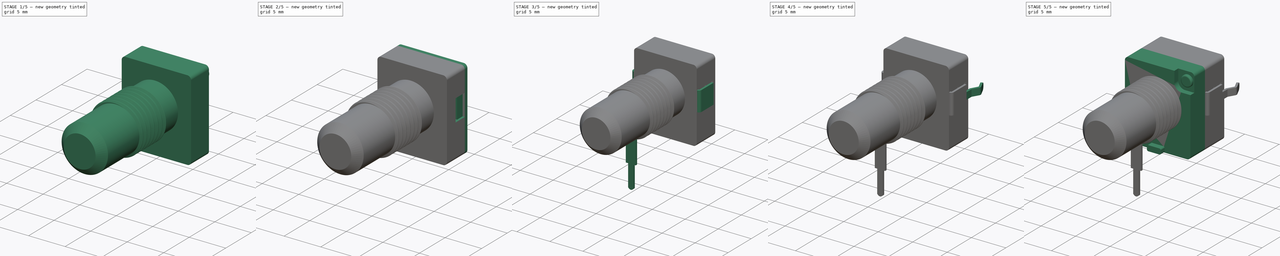
[diagram: build sequence overview — one tinted view per stage of 5, left to right]
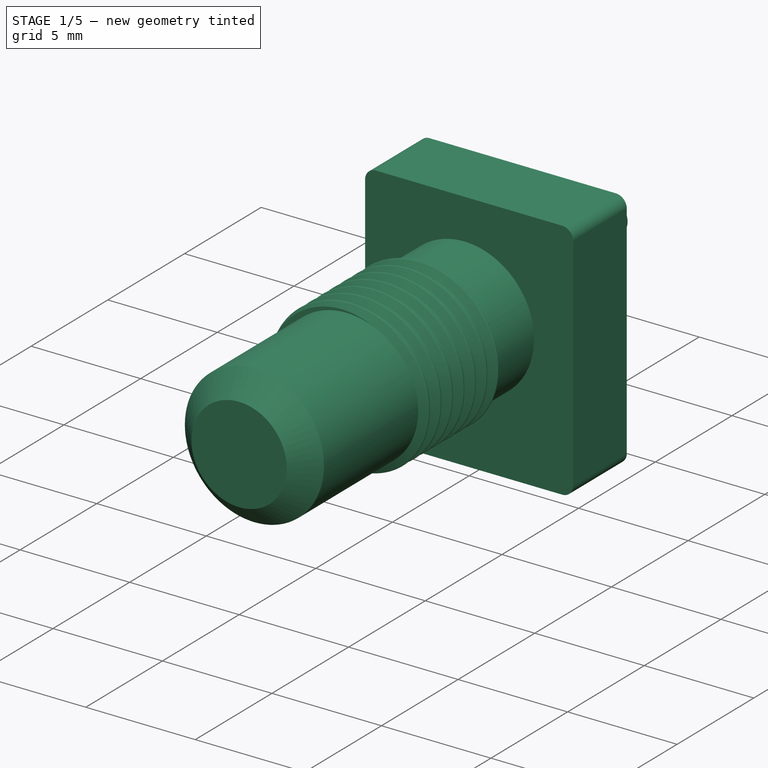
[diagram: stage 1 of 5 — iso view after this stage's code; geometry added in this stage tinted green]
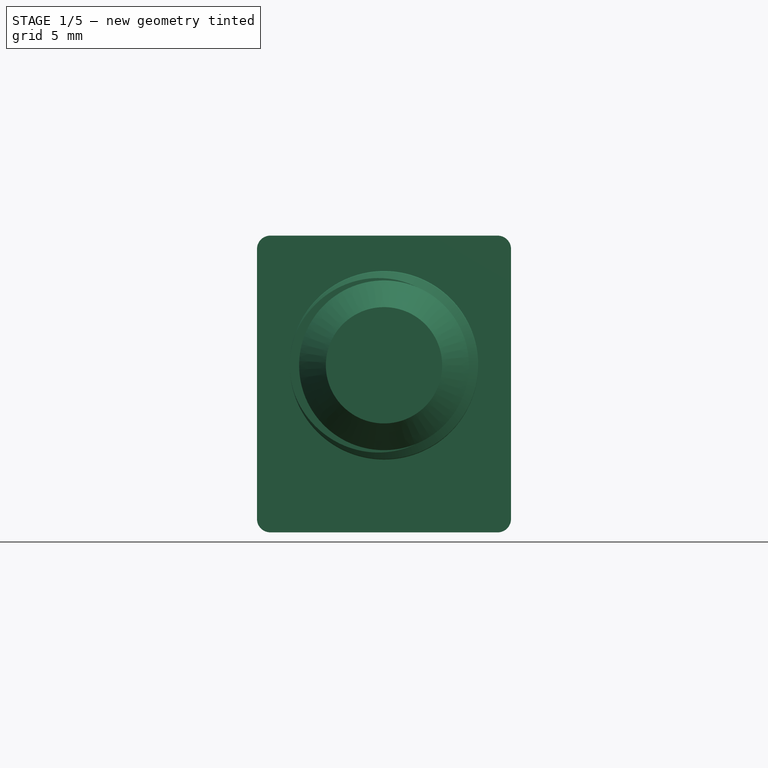
[diagram: stage 1 of 5 — front view after this stage's code; geometry added in this stage tinted green]
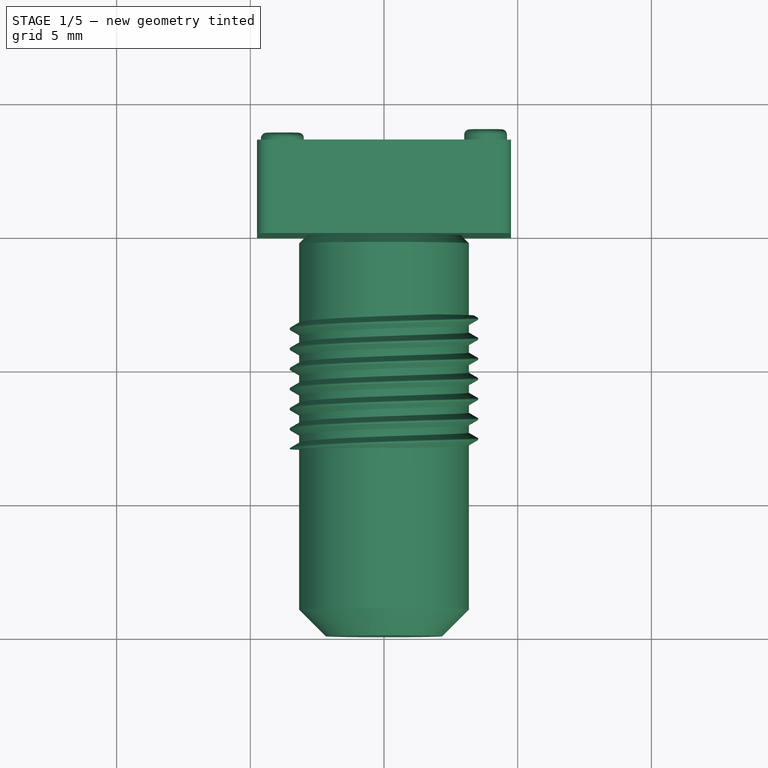
[diagram: stage 1 of 5 — top view after this stage's code; geometry added in this stage tinted green]
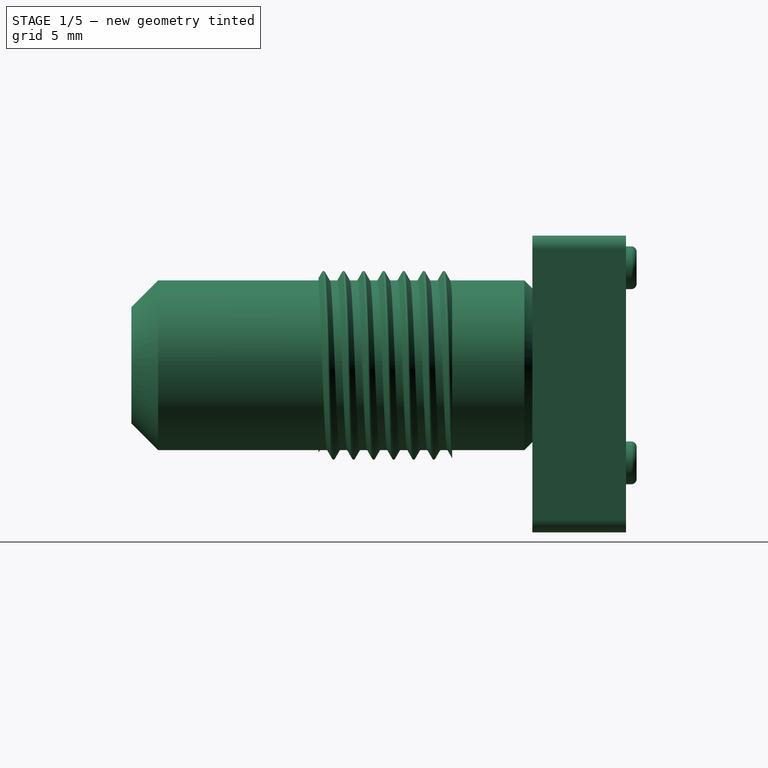
[diagram: stage 1 of 5 — right view after this stage's code; geometry added in this stage tinted green]
FCSTD DOCUMENT  (FreeCAD 0.21R33771 (Git))
Label: ALPHA-RD901F-40
License: All rights reserved
LicenseURL: http://fr.wikipedia.org/wiki/<copyright redacted>
objects: Sketcher::SketchObject×18, PartDesign::Pad×12, PartDesign::FeaturePython×9, PartDesign::Fillet×8, PartDesign::Pocket×6, PartDesign::Body×5, Part::Feature×2, PartDesign::Chamfer×2, Part::FeaturePython×1
note: 91 computed .brp shape members not serialized (recipe doc carries the construction recipe); baked Part::Feature solids carry a one-line shape summary decoded from their .brp

FEATURE [PartDesign::Body] Body  label="TopBody"
  Group = -> [Sketch,Pad,Sketch001,Pocket,Sketch002,Pad001,Sketch003,Pad002,Fillet,Fillet001,Sketch005,Pad003]
  Origin = -> Origin
  Tip = -> Pad003
FEATURE [Sketcher::SketchObject] Sketch006
  FullyConstrained = false
  MapMode = 5
  Placement = pos=(0,0,0) rot=(1,0,0;1.5708rad)
  Support = -> [XZ_Plane001]
  sketch-geometry (4):
    g0: LineSegment StartX=4.75 StartY=4.85 StartZ=0 EndX=-4.75 EndY=4.85 EndZ=0
    g1: LineSegment StartX=-4.75 StartY=4.85 StartZ=0 EndX=-4.75 EndY=-6.25 EndZ=0
    g2: LineSegment StartX=-4.75 StartY=-6.25 StartZ=0 EndX=4.75 EndY=-6.25 EndZ=0
    g3: LineSegment StartX=4.75 StartY=-6.25 StartZ=0 EndX=4.75 EndY=4.85 EndZ=0
  constraints (12):
    c: Coincident(g0,g1)
    c: Coincident(g1,g2)
    c: Coincident(g2,g3)
    c: Coincident(g3,g0)
    c: Horizontal(g0)
    c: Horizontal(g2)
    c: Vertical(g1)
    c: Vertical(g3)
    c: DistanceY(g0) = 4.85
    c: DistanceX(g0,g0) = 9.5
    c: DistanceY(g2,g-1) = 6.25
    c: Symmetric(g0,g0,g-2)
FEATURE [PartDesign::Pad] Pad004  label="BasePad001"
  AllowMultiFace = false
  Direction = (1,1,1)
  Length = 3.5
  Length2 = 100
  Placement = pos=(0,0,0) rot=(1,0,0;1.5708rad)
  Profile = -> Sketch006
  Reversed = true
  Type = 0
FEATURE [Sketcher::SketchObject] Sketch009
  FullyConstrained = false
  MapMode = 5
  Placement = pos=(0,3.5,3.621e-13) rot=(-1,0,0;1.5708rad)
  Support = -> [Pad004]
  sketch-geometry (2):
    g0: Circle CenterX=-3.8 CenterY=3.65 CenterZ=0 NormalX=0 NormalY=0 NormalZ=1 AngleXU=0 Radius=0.8
    g1: Circle CenterX=3.8 CenterY=-3.65 CenterZ=0 NormalX=0 NormalY=0 NormalZ=1 AngleXU=0 Radius=0.8
  constraints (6):
    c: Radius(g0) = 0.8
    c: DistanceX(g-1,g0) = -3.8
    c: DistanceY(g-1,g0) = 3.65
    c: DistanceX(g1) = 3.8
    c: DistanceY(g1) = -3.65
    c: Radius(g1) = 0.8
FEATURE [PartDesign::Pad] Pad006
  AllowMultiFace = false
  BaseFeature = -> Pad004
  Direction = (1,1,1)
  Length = 0.4
  Length2 = 100
  Placement = pos=(0,0,0) rot=(1,0,0;1.5708rad)
  Profile = -> Sketch009
  Type = 0
FEATURE [PartDesign::Fillet] Fillet003
  Base = -> Pad006 [Edge16,Edge18]
  BaseFeature = -> Pad006
  Placement = pos=(0,0,0) rot=(1,0,0;1.5708rad)
  Radius = 0.2
  SupportTransform = false
  UseAllEdges = false
FEATURE [PartDesign::Fillet] Fillet006
  Base = -> Fillet003 [Edge11,Edge12,Edge14,Edge16]
  BaseFeature = -> Fillet003
  Placement = pos=(0,0,0) rot=(1,0,0;1.5708rad)
  Radius = 0.5
  SupportTransform = false
  UseAllEdges = false
FEATURE [PartDesign::Body] Body001  label="MainPlasticBody"
  Group = -> [Sketch006,Pad004,Sketch009,Pad006,Fillet003,Fillet006,Sketch013,Pocket005,Sketch014,Pad007,Fillet007,Sketch019,Pocket006,Sketch020,Pocket007,Sketch021,Pocket008]
  Origin = -> Origin001
  Tip = -> Pocket008
FEATURE [Sketcher::SketchObject] Sketch022
  FullyConstrained = false
  MapMode = 5
  Placement = pos=(0,0,0) rot=(1,0,0;1.5708rad)
  Support = -> [XZ_Plane004]
  expr: Constraints[1] = 6.35 / 2
  sketch-geometry (1):
    g0: Circle CenterX=0 CenterY=0 CenterZ=0 NormalX=0 NormalY=0 NormalZ=1 AngleXU=0 Radius=3.175
  constraints (2):
    c: Coincident(g0,g-1)
    c: Radius(g0) = 3.175
FEATURE [PartDesign::Pad] Pad011
  AllowMultiFace = false
  Direction = (1,1,1)
  Length = 15
  Length2 = 100
  Placement = pos=(0,0,0) rot=(1,0,0;1.5708rad)
  Profile = -> Sketch022
  Type = 0
FEATURE [PartDesign::Chamfer] Chamfer
  Angle = 45
  Base = -> Pad011 [Edge2]
  BaseFeature = -> Pad011
  ChamferType = 0
  FlipDirection = false
  Placement = pos=(0,0,0) rot=(1,0,0;1.5708rad)
  Size = 0.3
  Size2 = 1
  SupportTransform = false
  UseAllEdges = false
FEATURE [PartDesign::Chamfer] Chamfer001
  Angle = 45
  Base = -> Chamfer [Edge3]
  BaseFeature = -> Chamfer
  ChamferType = 0
  FlipDirection = false
  Placement = pos=(0,0,0) rot=(1,0,0;1.5708rad)
  Size = 1
  Size2 = 1
  SupportTransform = false
  UseAllEdges = false
FEATURE [PartDesign::Body] Body003003  label="ShaftBody"
  Group = -> [Sketch022,Pad011,Chamfer,Chamfer001]
  Origin = -> Origin004
  Placement = pos=(0,-8,0) rot=(0,0,1;0rad)
  Tip = -> Chamfer001
FEATURE [Part::FeaturePython] ThreadedRod  label="7x5-ThreadedRod"  # Fasteners workbench fastener (typed FeaturePython)
  Placement = pos=(0,-8,2e-15) rot=(1,0,0;1.5708rad)
  diameter = 29
  diameterCustom = 7
  invert = false
  leftHanded = false
  length = 5
  matchOuter = false
  offset = 0
  pitchCustom = 0.75
  thread = true
  type = 2
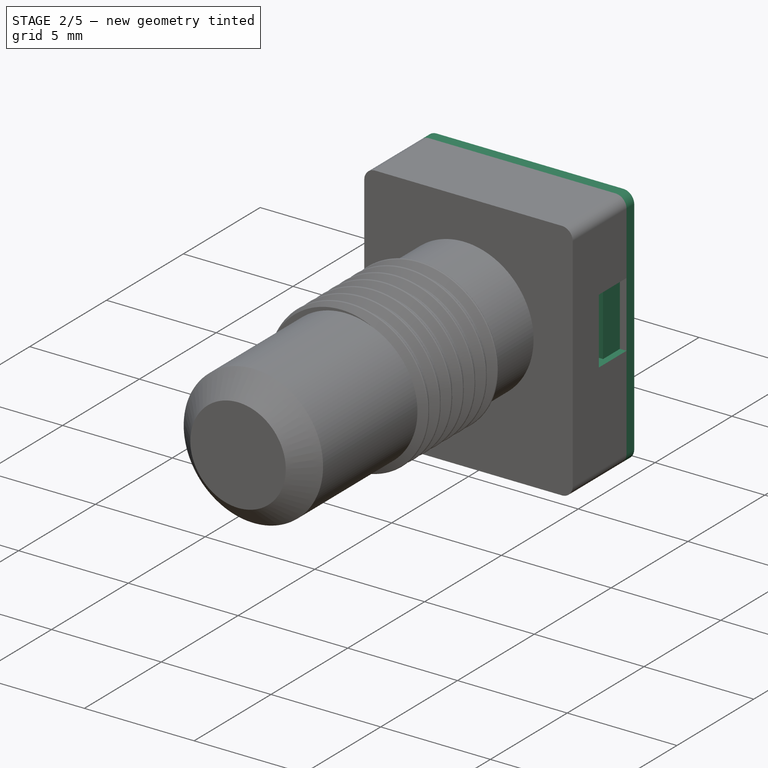
[diagram: stage 2 of 5 — iso view after this stage's code; geometry added in this stage tinted green]
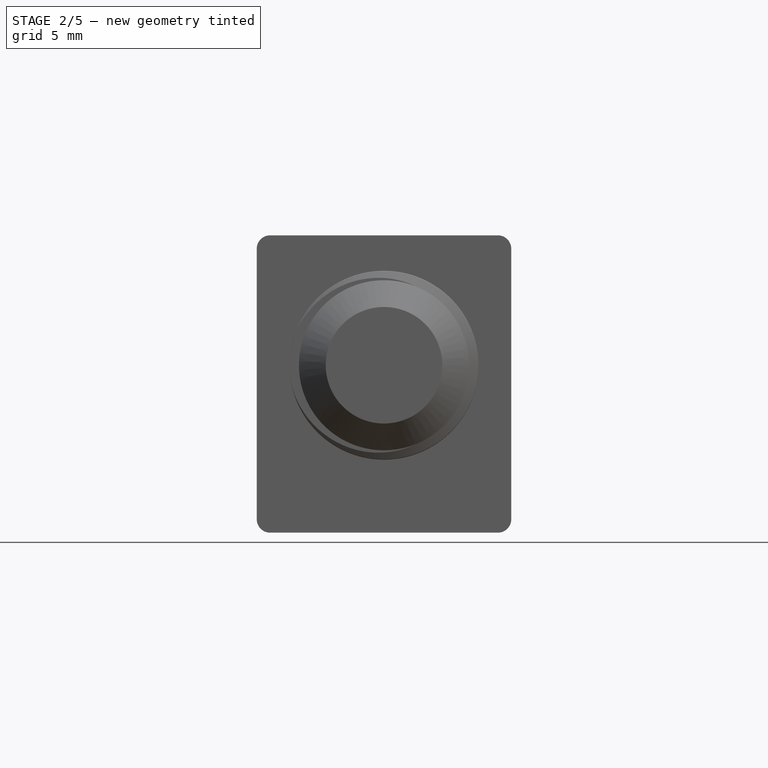
[diagram: stage 2 of 5 — front view after this stage's code; geometry added in this stage tinted green]
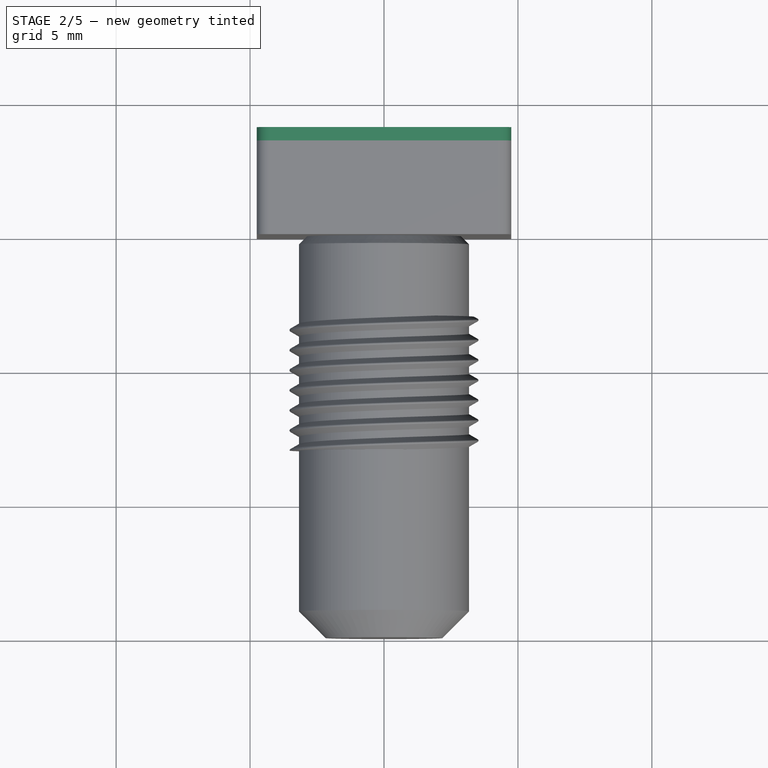
[diagram: stage 2 of 5 — top view after this stage's code; geometry added in this stage tinted green]
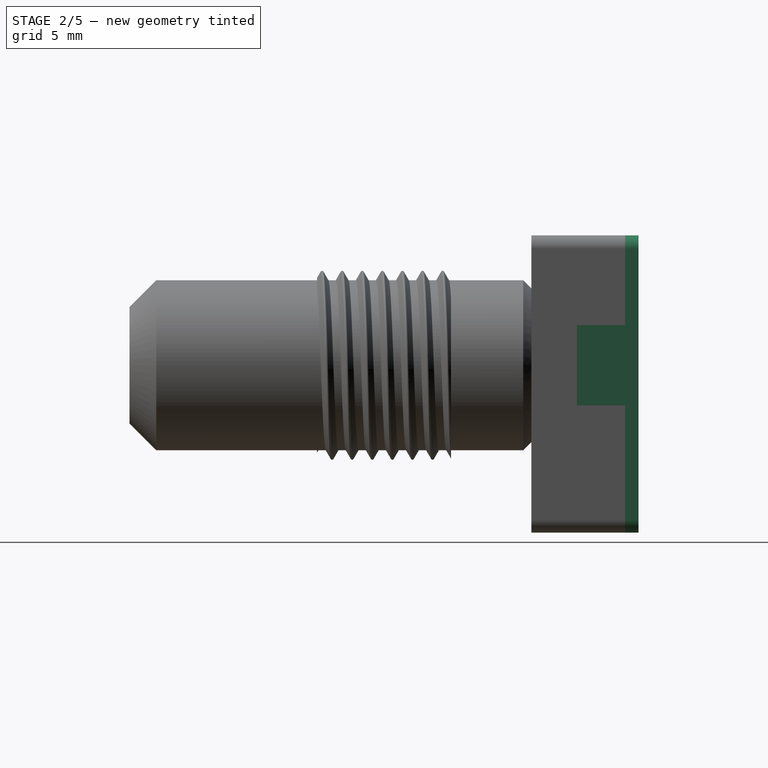
[diagram: stage 2 of 5 — right view after this stage's code; geometry added in this stage tinted green]
FEATURE [Sketcher::SketchObject] Sketch013
  FullyConstrained = false
  MapMode = 5
  Placement = pos=(4.75,0,0) rot=(0.707107,0,0.707107;3.14159rad)
  Support = -> [Fillet006]
  sketch-geometry (4):
    g0: LineSegment StartX=-1.5 StartY=-1.75 StartZ=0 EndX=1.5 EndY=-1.75 EndZ=0
    g1: LineSegment StartX=1.5 StartY=-1.75 StartZ=0 EndX=1.5 EndY=-2.4 EndZ=0
    g2: LineSegment StartX=1.5 StartY=-2.4 StartZ=0 EndX=-1.5 EndY=-2.4 EndZ=0
    g3: LineSegment StartX=-1.5 StartY=-2.4 StartZ=0 EndX=-1.5 EndY=-1.75 EndZ=0
  constraints (12):
    c: Coincident(g0,g1)
    c: Coincident(g1,g2)
    c: Coincident(g2,g3)
    c: Coincident(g3,g0)
    c: Horizontal(g0)
    c: Horizontal(g2)
    c: Vertical(g1)
    c: Vertical(g3)
    c: DistanceX(g2,g2) = 3
    c: Symmetric(g2,g1,g-2)
    c: DistanceY(g1,g1) = 0.65
    c: DistanceY(g2,g-1) = 2.4
FEATURE [PartDesign::Pocket] Pocket005
  AllowMultiFace = false
  BaseFeature = -> Fillet006
  Direction = (1,1,1)
  Length = 1
  Length2 = 100
  Placement = pos=(0,0,0) rot=(1,0,0;1.5708rad)
  Profile = -> Sketch013
  Type = 0
FEATURE [Sketcher::SketchObject] Sketch014
  AttachmentOffset = pos=(0,0,0) rot=(0,0,1;3.14159rad)
  FullyConstrained = false
  MapMode = 5
  Placement = pos=(0,3.5,3.621e-13) rot=(0,0.707107,0.707107;3.14159rad)
  Support = -> [Pocket005]
  sketch-geometry (4):
    g0: LineSegment StartX=4.75 StartY=4.85 StartZ=0 EndX=-4.75 EndY=4.85 EndZ=0
    g1: LineSegment StartX=-4.75 StartY=4.85 StartZ=0 EndX=-4.75 EndY=-6.25 EndZ=0
    g2: LineSegment StartX=-4.75 StartY=-6.25 StartZ=0 EndX=4.75 EndY=-6.25 EndZ=0
    g3: LineSegment StartX=4.75 StartY=-6.25 StartZ=0 EndX=4.75 EndY=4.85 EndZ=0
  constraints (12):
    c: Coincident(g0,g1)
    c: Coincident(g1,g2)
    c: Coincident(g2,g3)
    c: Coincident(g3,g0)
    c: Horizontal(g0)
    c: Horizontal(g2)
    c: Vertical(g1)
    c: Vertical(g3)
    c: DistanceY(g0) = 4.85
    c: DistanceX(g0,g0) = 9.5
    c: DistanceY(g2,g-1) = 6.25
    c: Symmetric(g0,g0,g-2)
FEATURE [PartDesign::Pad] Pad007
  AllowMultiFace = false
  BaseFeature = -> Pocket005
  Direction = (1,1,1)
  Length = 0.5
  Length2 = 100
  Placement = pos=(0,0,0) rot=(1,0,0;1.5708rad)
  Profile = -> Sketch014
  Type = 0
FEATURE [PartDesign::Fillet] Fillet007
  Base = -> Pad007 [Edge47,Edge37,Edge29,Edge32]
  BaseFeature = -> Pad007
  Placement = pos=(0,0,0) rot=(1,0,0;1.5708rad)
  Radius = 0.5
  SupportTransform = false
  UseAllEdges = false
FEATURE [PartDesign::Body] Body002  label="MetallicBaseBody"
  Group = -> [Sketch015,Pad008,Bend,Bend001,Bend002,Bend003,Sketch016,Pad009,Bend004,Bend005,Bend006,Bend007,Fillet008,Sketch017,Pad010,Fillet009]
  Origin = -> Origin002
  Placement = pos=(0,4,0) rot=(0,0,1;0rad)
  Tip = -> Fillet009
FEATURE [Sketcher::SketchObject] Sketch008
  FullyConstrained = false
  MapMode = 5
  Placement = pos=(0,0,0) rot=(1,0,0;1.5708rad)
  Support = -> [XZ_Plane003]
  expr: Constraints[10] = 1.5 / 2
  sketch-geometry (4):
    g0: LineSegment StartX=-0.75 StartY=-2 StartZ=0 EndX=0.75 EndY=-2 EndZ=0
    g1: LineSegment StartX=0.75 StartY=-2 StartZ=0 EndX=0.75 EndY=-2.3 EndZ=0
    g2: LineSegment StartX=0.75 StartY=-2.3 StartZ=0 EndX=-0.75 EndY=-2.3 EndZ=0
    g3: LineSegment StartX=-0.75 StartY=-2.3 StartZ=0 EndX=-0.75 EndY=-2 EndZ=0
  constraints (12):
    c: Coincident(g0,g1)
    c: Coincident(g1,g2)
    c: Coincident(g2,g3)
    c: Coincident(g3,g0)
    c: Horizontal(g0)
    c: Horizontal(g2)
    c: Vertical(g1)
    c: Vertical(g3)
    c: DistanceY(g3,g3) = 0.3
    c: DistanceX(g0,g0) = 1.5
    c: DistanceX(g0) = 0.75
    c: DistanceY(g0) = -2
FEATURE [PartDesign::Pad] Pad005
  AllowMultiFace = false
  Direction = (1,1,1)
  Length = 7
  Length2 = 100
  Placement = pos=(0,0,0) rot=(1,0,0;1.5708rad)
  Profile = -> Sketch008
  Type = 0
FEATURE [PartDesign::Body] Body003  label="CentralPinBody"
  Group = -> [Sketch008,Pad005,Bend008,Sketch018,Pocket003,Fillet010]
  Origin = -> Origin003
  Placement = pos=(0,0,0) rot=(1,0,0;1.5708rad)
  Tip = -> Fillet010
FEATURE [Part::Feature] Body003001  label="LeftPinCopyBody"
  Placement = pos=(-2.5,0,0) rot=(1,0,0;1.5708rad)
  shape: bbox 1.5 x 8.534 x 7.5 mm, 20 faces (baked)
FEATURE [Part::Feature] Body003002  label="RightPinCopyBody"
  Placement = pos=(2.5,0,0) rot=(1,0,0;1.5708rad)
  shape: bbox 1.5 x 8.534 x 7.5 mm, 20 faces (baked)
FEATURE [Sketcher::SketchObject] Sketch019
  FullyConstrained = false
  MapMode = 5
  Placement = pos=(-4.75,0,0) rot=(0.707107,0,-0.707107;3.14159rad)
  Support = -> [Fillet006]
  sketch-geometry (4):
    g0: LineSegment StartX=-1.5 StartY=-1.75 StartZ=0 EndX=1.5 EndY=-1.75 EndZ=0
    g1: LineSegment StartX=1.5 StartY=-1.75 StartZ=0 EndX=1.5 EndY=-2.4 EndZ=0
    g2: LineSegment StartX=1.5 StartY=-2.4 StartZ=0 EndX=-1.5 EndY=-2.4 EndZ=0
    g3: LineSegment StartX=-1.5 StartY=-2.4 StartZ=0 EndX=-1.5 EndY=-1.75 EndZ=0
  constraints (12):
    c: Coincident(g0,g1)
    c: Coincident(g1,g2)
    c: Coincident(g2,g3)
    c: Coincident(g3,g0)
    c: Horizontal(g0)
    c: Horizontal(g2)
    c: Vertical(g1)
    c: Vertical(g3)
    c: DistanceX(g2,g2) = 3
    c: Symmetric(g2,g1,g-2)
    c: DistanceY(g1,g1) = 0.65
    c: DistanceY(g2,g-1) = 2.4
FEATURE [PartDesign::Pocket] Pocket006
  AllowMultiFace = false
  BaseFeature = -> Fillet007
  Direction = (1,1,1)
  Length = 1
  Length2 = 100
  Placement = pos=(0,0,0) rot=(1,0,0;1.5708rad)
  Profile = -> Sketch019
  Type = 0
FEATURE [Sketcher::SketchObject] Sketch020
  FullyConstrained = false
  MapMode = 5
  Placement = pos=(4.75,0,0) rot=(0.707107,0,0.707107;3.14159rad)
  Support = -> [Fillet006]
  sketch-geometry (4):
    g0: LineSegment StartX=-1.5 StartY=-1.7 StartZ=0 EndX=1.5 EndY=-1.7 EndZ=0
    g1: LineSegment StartX=1.5 StartY=-1.7 StartZ=0 EndX=1.5 EndY=-3.5 EndZ=0
    g2: LineSegment StartX=1.5 StartY=-3.5 StartZ=0 EndX=-1.5 EndY=-3.5 EndZ=0
    g3: LineSegment StartX=-1.5 StartY=-3.5 StartZ=0 EndX=-1.5 EndY=-1.7 EndZ=0
  constraints (12):
    c: Coincident(g0,g1)
    c: Coincident(g1,g2)
    c: Coincident(g2,g3)
    c: Coincident(g3,g0)
    c: Horizontal(g0)
    c: Horizontal(g2)
    c: Vertical(g1)
    c: Vertical(g3)
    c: DistanceX(g2,g2) = 3
    c: Symmetric(g2,g1,g-2)
    c: DistanceY(g1,g1) = 1.8
    c: DistanceY(g0,g-1) = 1.7
FEATURE [PartDesign::Pocket] Pocket007
  AllowMultiFace = false
  BaseFeature = -> Pocket006
  Direction = (1,1,1)
  Length = 0.3
  Length2 = 100
  Placement = pos=(0,0,0) rot=(1,0,0;1.5708rad)
  Profile = -> Sketch020
  Type = 0
FEATURE [Sketcher::SketchObject] Sketch021
  FullyConstrained = false
  MapMode = 5
  Placement = pos=(-4.75,0,0) rot=(0.707107,0,-0.707107;3.14159rad)
  Support = -> [Fillet006]
  sketch-geometry (4):
    g0: LineSegment StartX=-1.5 StartY=-1.7 StartZ=0 EndX=1.5 EndY=-1.7 EndZ=0
    g1: LineSegment StartX=1.5 StartY=-1.7 StartZ=0 EndX=1.5 EndY=-3.5 EndZ=0
    g2: LineSegment StartX=1.5 StartY=-3.5 StartZ=0 EndX=-1.5 EndY=-3.5 EndZ=0
    g3: LineSegment StartX=-1.5 StartY=-3.5 StartZ=0 EndX=-1.5 EndY=-1.7 EndZ=0
  constraints (12):
    c: Coincident(g0,g1)
    c: Coincident(g1,g2)
    c: Coincident(g2,g3)
    c: Coincident(g3,g0)
    c: Horizontal(g0)
    c: Horizontal(g2)
    c: Vertical(g1)
    c: Vertical(g3)
    c: DistanceX(g2,g2) = 3
    c: Symmetric(g2,g1,g-2)
    c: DistanceY(g1,g1) = 1.8
    c: DistanceY(g0,g-1) = 1.7
FEATURE [PartDesign::Pocket] Pocket008
  AllowMultiFace = false
  BaseFeature = -> Pocket007
  Direction = (1,1,1)
  Length = 0.3
  Length2 = 100
  Placement = pos=(0,0,0) rot=(1,0,0;1.5708rad)
  Profile = -> Sketch021
  Type = 0
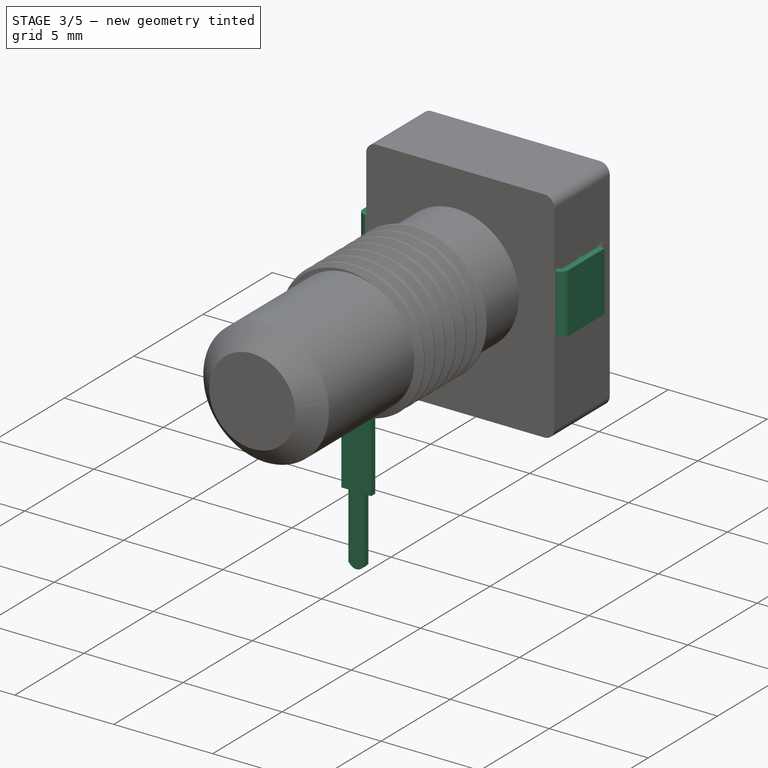
[diagram: stage 3 of 5 — iso view after this stage's code; geometry added in this stage tinted green]
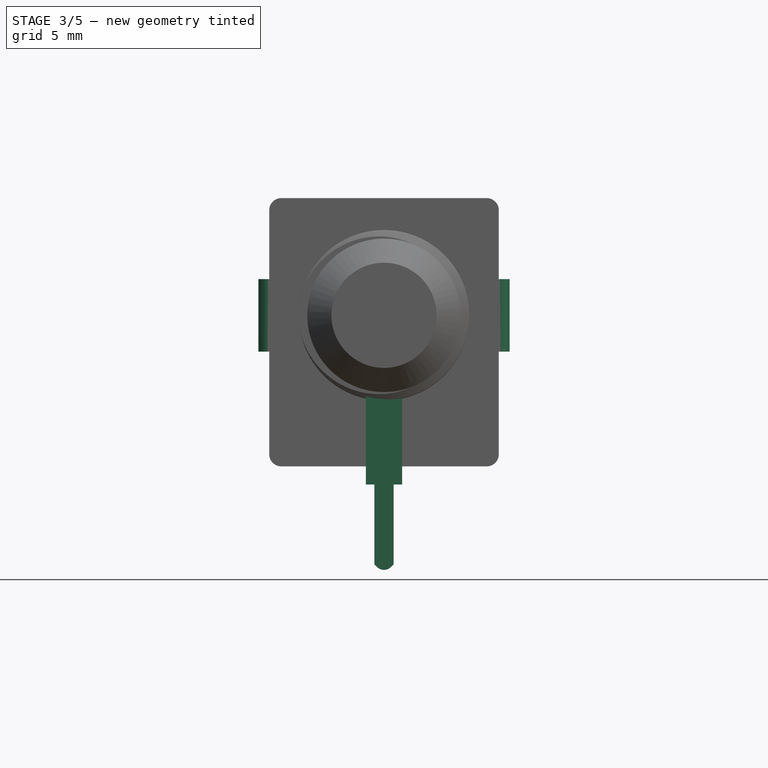
[diagram: stage 3 of 5 — front view after this stage's code; geometry added in this stage tinted green]
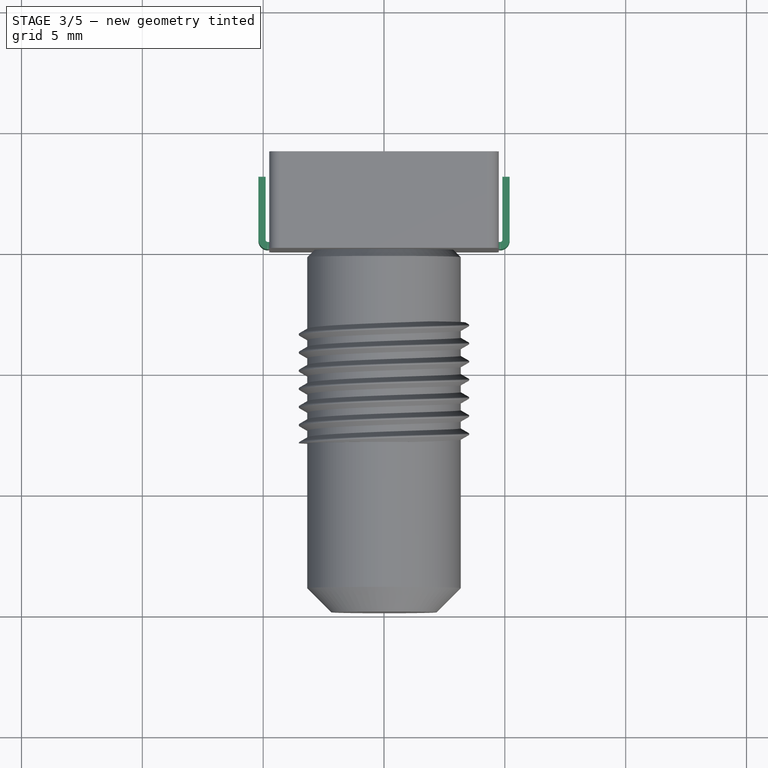
[diagram: stage 3 of 5 — top view after this stage's code; geometry added in this stage tinted green]
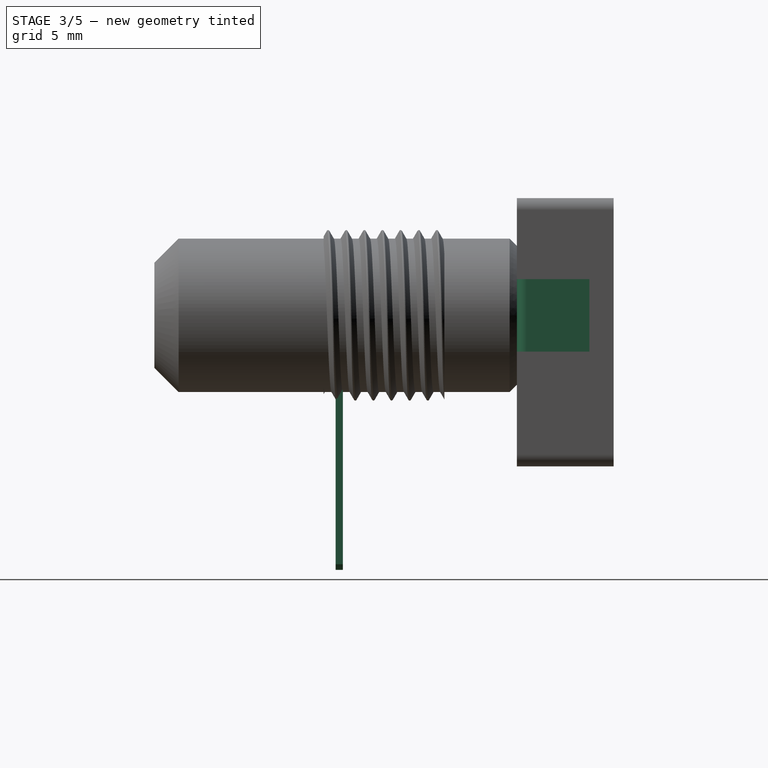
[diagram: stage 3 of 5 — right view after this stage's code; geometry added in this stage tinted green]
FEATURE [Sketcher::SketchObject] Sketch015
  FullyConstrained = false
  MapMode = 5
  Placement = pos=(0,0,0) rot=(1,0,0;1.5708rad)
  Support = -> [XZ_Plane002]
  sketch-geometry (40):
    g0: LineSegment StartX=1.5 StartY=4.5 StartZ=0 EndX=1.5 EndY=4 EndZ=0
    g1: LineSegment StartX=-1.5 StartY=4.5 StartZ=0 EndX=-1.5 EndY=4 EndZ=0
    g2: ArcOfCircle CenterX=1.25 CenterY=4 CenterZ=0 NormalX=0 NormalY=0 NormalZ=1 AngleXU=0 Radius=0.25 StartAngle=3.14159 EndAngle=6.28319
    g3: LineSegment StartX=1 StartY=4 StartZ=0 EndX=1 EndY=4.2 EndZ=0
    g4: ArcOfCircle CenterX=-1.25 CenterY=4 CenterZ=0 NormalX=0 NormalY=0 NormalZ=1 AngleXU=0 Radius=0.25 StartAngle=3.14159 EndAngle=6.28319
    g5: LineSegment StartX=-1 StartY=4 StartZ=0 EndX=-1 EndY=4.2 EndZ=0
    g6: LineSegment StartX=-1 StartY=4.2 StartZ=0 EndX=1 EndY=4.2 EndZ=0
    g7: LineSegment StartX=-4.2 StartY=4.5 StartZ=0 EndX=-1.5 EndY=4.5 EndZ=0
    g8: LineSegment StartX=1.5 StartY=4.5 StartZ=0 EndX=4.2 EndY=4.5 EndZ=0
    g9: LineSegment StartX=-4.2 StartY=-4.5 StartZ=0 EndX=-1.5 EndY=-4.5 EndZ=0
    g10: LineSegment StartX=-1.5 StartY=-4.5 StartZ=0 EndX=-1.5 EndY=-4 EndZ=0
    g11: ArcOfCircle CenterX=-1.25 CenterY=-4 CenterZ=0 NormalX=0 NormalY=0 NormalZ=1 AngleXU=0 Radius=0.25 StartAngle=0 EndAngle=3.14159
    g12: LineSegment StartX=-1 StartY=-4 StartZ=0 EndX=-1 EndY=-4.2 EndZ=0
    g13: LineSegment StartX=-1 StartY=-4.2 StartZ=0 EndX=1 EndY=-4.2 EndZ=0
    g14: LineSegment StartX=1 StartY=-4.2 StartZ=0 EndX=1 EndY=-4 EndZ=0
    g15: ArcOfCircle CenterX=1.25 CenterY=-4 CenterZ=0 NormalX=0 NormalY=0 NormalZ=1 AngleXU=0 Radius=0.25 StartAngle=0 EndAngle=3.14159
    g16: LineSegment StartX=1.5 StartY=-4 StartZ=0 EndX=1.5 EndY=-4.5 EndZ=0
    g17: LineSegment StartX=1.5 StartY=-4.5 StartZ=0 EndX=4.2 EndY=-4.5 EndZ=0
    g18: LineSegment StartX=-4.5 StartY=4.2 StartZ=0 EndX=-4.5 EndY=2 EndZ=0
    g19: LineSegment StartX=-4.5 StartY=2 StartZ=0 EndX=-3.5 EndY=2 EndZ=0
    g20: ArcOfCircle CenterX=-3.5 CenterY=1.75 CenterZ=0 NormalX=0 NormalY=0 NormalZ=1 AngleXU=0 Radius=0.25 StartAngle=4.71239 EndAngle=7.85398
    g21: LineSegment StartX=-3.5 StartY=1.5 StartZ=0 EndX=-4.8 EndY=1.5 EndZ=0
    g22: LineSegment StartX=-4.8 StartY=1.5 StartZ=0 EndX=-4.8 EndY=-1.5 EndZ=0
    g23: LineSegment StartX=-4.8 StartY=-1.5 StartZ=0 EndX=-3.5 EndY=-1.5 EndZ=0
    g24: ArcOfCircle CenterX=-3.5 CenterY=-1.75 CenterZ=0 NormalX=0 NormalY=0 NormalZ=1 AngleXU=0 Radius=0.25 StartAngle=4.71239 EndAngle=7.85398
    g25: LineSegment StartX=-3.5 StartY=-2 StartZ=0 EndX=-4.5 EndY=-2 EndZ=0
    g26: LineSegment StartX=-4.5 StartY=-2 StartZ=0 EndX=-4.5 EndY=-4.2 EndZ=0
    g27: ArcOfCircle CenterX=-4.2 CenterY=4.2 CenterZ=0 NormalX=0 NormalY=0 NormalZ=1 AngleXU=0 Radius=0.3 StartAngle=1.5708 EndAngle=3.14159
    g28: ArcOfCircle CenterX=4.2 CenterY=4.2 CenterZ=0 NormalX=0 NormalY=0 NormalZ=1 AngleXU=0 Radius=0.3 StartAngle=0 EndAngle=1.5708
    g29: LineSegment StartX=4.5 StartY=4.2 StartZ=0 EndX=4.5 EndY=2 EndZ=0
    g30: LineSegment StartX=4.5 StartY=2 StartZ=0 EndX=3.5 EndY=2 EndZ=0
    g31: LineSegment StartX=3.5 StartY=1.5 StartZ=0 EndX=4.8 EndY=1.5 EndZ=0
    g32: LineSegment StartX=4.8 StartY=1.5 StartZ=0 EndX=4.8 EndY=-1.5 EndZ=0
    g33: LineSegment StartX=4.8 StartY=-1.5 StartZ=0 EndX=3.5 EndY=-1.5 EndZ=0
    g34: ArcOfCircle CenterX=3.5 CenterY=1.75 CenterZ=0 NormalX=0 NormalY=0 NormalZ=1 AngleXU=0 Radius=0.25 StartAngle=1.5708 EndAngle=4.71239
    g35: ArcOfCircle CenterX=3.5 CenterY=-1.75 CenterZ=0 NormalX=0 NormalY=0 NormalZ=1 AngleXU=0 Radius=0.25 StartAngle=1.5708 EndAngle=4.71239
    g36: LineSegment StartX=3.5 StartY=-2 StartZ=0 EndX=4.5 EndY=-2 EndZ=0
    g37: LineSegment StartX=4.5 StartY=-2 StartZ=0 EndX=4.5 EndY=-4.2 EndZ=0
    g38: ArcOfCircle CenterX=4.2 CenterY=-4.2 CenterZ=0 NormalX=0 NormalY=0 NormalZ=1 AngleXU=0 Radius=0.3 StartAngle=4.71239 EndAngle=6.28319
    g39: ArcOfCircle CenterX=-4.2 CenterY=-4.2 CenterZ=0 NormalX=0 NormalY=0 NormalZ=1 AngleXU=0 Radius=0.3 StartAngle=3.14159 EndAngle=4.71239
  constraints (104):
    c: Vertical(g0)
    c: Vertical(g1)
    c: Vertical(g3)
    c: Tangent(g3,g2) = 1.5708
    c: Tangent(g2,g0) = 1.5708
    c: Vertical(g5)
    c: Tangent(g4,g1) = -1.5708
    c: Tangent(g5,g4) = -1.5708
    c: Coincident(g6,g3)
    c: Coincident(g6,g5)
    c: Horizontal(g6)
    c: Symmetric(g5,g3,g-2)
    c: Coincident(g7,g1)
    c: Horizontal(g7)
    c: Coincident(g8,g0)
    c: Horizontal(g8)
    c: Symmetric(g1,g0,g-2)
    c: DistanceY(g1,g1) = 0.5
    c: DistanceY(g0,g0) = 0.5
    c: DistanceX(g6,g6) = 2
    c: DistanceX(g1,g0) = 3
    c: DistanceY(g5,g1) = 0.3
    c: Horizontal(g9)
    c: Coincident(g10,g9)
    c: Vertical(g10)
    c: Tangent(g11,g12) = 1.5708
    c: Coincident(g12,g13)
    c: Horizontal(g13)
    c: Coincident(g13,g14)
    c: Vertical(g14)
    c: Tangent(g15,g16) = 1.5708
    c: Coincident(g16,g17)
    c: Horizontal(g17)
    c: Vertical(g16)
    c: DistanceX(g13,g13) = 2
    c: DistanceX(g9,g16) = 3
    c: Symmetric(g12,g13,g-2)
    c: Symmetric(g9,g16,g-2)
    c: DistanceY(g9,g12) = 0.3
    c: DistanceY(g10,g10) = 0.5
    c: DistanceY(g16,g16) = 0.5
    c: Tangent(g11,g10) = 1.5708
    c: Vertical(g12)
    c: Tangent(g15,g14) = 1.5708
    c: Vertical(g18)
    c: Coincident(g18,g19)
    c: Horizontal(g19)
    c: Coincident(g21,g22)
    c: Vertical(g22)
    c: Horizontal(g23)
    c: Horizontal(g25)
    c: Coincident(g25,g26)
    c: Vertical(g26)
    c: DistanceY(g22,g22) = 3
    c: Horizontal(g21)
    c: Tangent(g20,g21) = 1.5708
    c: Tangent(g20,g19) = 1.5708
    c: Tangent(g24,g25) = 1.5708
    c: Tangent(g24,g23) = 1.5708
    c: Symmetric(g22,g21,g-1)
    c: Symmetric(g18,g25,g-1)
    c: DistanceY(g25,g18) = 4
    c: Radius(g27) = 0.3
    c: Radius(g28) = 0.3
    c: Tangent(g8,g28) = 1.5708
    c: Tangent(g27,g7) = 1.5708
    c: Tangent(g27,g18) = -1.5708
    c: DistanceX(g18,g28) = 9
    c: Symmetric(g18,g28,g-2)
    c: Coincident(g29,g28)
    c: Vertical(g29)
    c: Coincident(g30,g29)
    c: Horizontal(g30)
    c: Coincident(g32,g31)
    c: Vertical(g32)
    c: Coincident(g33,g32)
    c: Horizontal(g33)
    c: Horizontal(g31)
    c: Tangent(g34,g30) = -1.5708
    c: Tangent(g34,g31) = -1.5708
    c: Horizontal(g36)
    c: Coincident(g37,g36)
    c: Vertical(g37)
    c: Radius(g38) = 0.3
    c: Tangent(g38,g37) = 1.5708
    c: Tangent(g38,g17) = -1.5708
    c: Symmetric(g32,g31,g-1)
    c: Symmetric(g29,g36,g-1)
    c: DistanceY(g32,g32) = 3
    c: DistanceY(g36,g29) = 4
    c: Radius(g39) = 0.3
    c: Tangent(g39,g9) = -1.5708
    c: Tangent(g39,g26) = -1.5708
    c: DistanceY(g17,g8) = 9
    c: DistanceX(g30,g30) = 1
    c: DistanceX(g19,g19) = 1
    c: DistanceX(g25,g25) = 1
    c: DistanceX(g36,g36) = 1
    c: Symmetric(g31,g21,g-2)
    c: Symmetric(g8,g17,g-1)
    c: Coincident(g22,g23)
    c: DistanceX(g21,g31) = 9.6
    c: Tangent(g35,g33) = -1.5708
    c: Tangent(g36,g35) = -1.5708
FEATURE [PartDesign::Pad] Pad008
  AllowMultiFace = false
  Direction = (1,1,1)
  Length = 0.3
  Length2 = 100
  Placement = pos=(0,0,0) rot=(1,0,0;1.5708rad)
  Profile = -> Sketch015
  Reversed = true
  Type = 0
FEATURE [PartDesign::FeaturePython] Bend  # WARN: FeaturePython — macro-defined, semantics opaque (R4)
  BaseFeature = -> Pad008
  angle = 90
  baseObject = -> Pad008 [Face4]
  extend1 = 0
  extend2 = 0
  gap1 = 0
  gap2 = 0
  invert = false
  kfactor = 0.45
  length = 2.6
  miterangle1 = 0
  miterangle2 = 0
  radius = 0.1
  reliefType = 0
  reliefd = 1
  reliefw = 0.5
  unfold = false
FEATURE [PartDesign::FeaturePython] Bend001  # WARN: FeaturePython — macro-defined, semantics opaque (R4)
  BaseFeature = -> Bend
  angle = 90
  baseObject = -> Bend [Face34]
  extend1 = 0
  extend2 = 0
  gap1 = 0
  gap2 = 0
  invert = false
  kfactor = 0.45
  length = 2.6
  miterangle1 = 0
  miterangle2 = 0
  radius = 0.1
  reliefType = 0
  reliefd = 1
  reliefw = 0.5
  unfold = false
FEATURE [PartDesign::FeaturePython] Bend002  # WARN: FeaturePython — macro-defined, semantics opaque (R4)
  BaseFeature = -> Bend001
  angle = 90
  baseObject = -> Bend001 [Face29]
  extend1 = 0
  extend2 = 0
  gap1 = 0
  gap2 = 0
  invert = false
  kfactor = 0.45
  length = 2.6
  miterangle1 = 0
  miterangle2 = 0
  radius = 0.1
  reliefType = 0
  reliefd = 1
  reliefw = 0.5
  unfold = false
FEATURE [PartDesign::FeaturePython] Bend003  # WARN: FeaturePython — macro-defined, semantics opaque (R4)
  BaseFeature = -> Bend002
  angle = 90
  baseObject = -> Bend002 [Face44]
  extend1 = 0
  extend2 = 0
  gap1 = 0
  gap2 = 0
  invert = false
  kfactor = 0.45
  length = 2.6
  miterangle1 = 0
  miterangle2 = 0
  radius = 0.1
  reliefType = 0
  reliefd = 1
  reliefw = 0.5
  unfold = false
FEATURE [PartDesign::FeaturePython] Bend008  # WARN: FeaturePython — macro-defined, semantics opaque (R4)
  BaseFeature = -> Pad005
  angle = 90
  baseObject = -> Pad005 [Face6]
  extend1 = 0
  extend2 = 0
  gap1 = 0
  gap2 = 0
  invert = false
  kfactor = 0.45
  length = 8.5
  miterangle1 = 0
  miterangle2 = 0
  radius = 0.2
  reliefType = 0
  reliefd = 1
  reliefw = 0.5
  unfold = false
FEATURE [Sketcher::SketchObject] Sketch018
  FullyConstrained = false
  MapMode = 5
  Placement = pos=(0,-7.5,-7.763e-13) rot=(1,0,0;1.5708rad)
  Support = -> [Bend008]
  sketch-geometry (9):
    g0: LineSegment StartX=1 StartY=-7 StartZ=0 EndX=0.4 EndY=-7 EndZ=0
    g1: LineSegment StartX=0.4 StartY=-7 StartZ=0 EndX=0.4 EndY=-10.3 EndZ=0
    g2: LineSegment StartX=0.4 StartY=-10.3 StartZ=0 EndX=0 EndY=-10.7 EndZ=0
    g3: LineSegment StartX=0 StartY=-10.7 StartZ=0 EndX=-0.4 EndY=-10.3 EndZ=0
    g4: LineSegment StartX=-0.4 StartY=-10.3 StartZ=0 EndX=-0.4 EndY=-7 EndZ=0
    g5: LineSegment StartX=-0.4 StartY=-7 StartZ=0 EndX=-1 EndY=-7 EndZ=0
    g6: LineSegment StartX=-1 StartY=-7 StartZ=0 EndX=-1 EndY=-11.2 EndZ=0
    g7: LineSegment StartX=-1 StartY=-11.2 StartZ=0 EndX=1 EndY=-11.2 EndZ=0
    g8: LineSegment StartX=1 StartY=-11.2 StartZ=0 EndX=1 EndY=-7 EndZ=0
  constraints (27):
    c: Horizontal(g0)
    c: Coincident(g0,g1)
    c: Vertical(g1)
    c: Coincident(g1,g2)
    c: Coincident(g2,g3)
    c: Coincident(g3,g4)
    c: Vertical(g4)
    c: Coincident(g4,g5)
    c: Horizontal(g5)
    c: Coincident(g5,g6)
    c: Vertical(g6)
    c: Coincident(g6,g7)
    c: Horizontal(g7)
    c: Coincident(g7,g8)
    c: Coincident(g8,g0)
    c: Vertical(g8)
    c: DistanceX(g4,g0) = 0.8
    c: DistanceY(g1,g0) = 3.3
    c: Horizontal(g1,g3)
    c: DistanceX(g2,g1) = 0.4
    c: DistanceY(g2,g1) = 0.4
    c: DistanceY(g8,g8) = 4.2
    c: DistanceX(g7,g7) = 2
    c: DistanceX(g5,g5) = 0.6
    c: Horizontal(g4,g0)
    c: PointOnObject(g2,g-2)
    c: DistanceY(g0,g-1) = 7
FEATURE [PartDesign::Pocket] Pocket003
  AllowMultiFace = false
  BaseFeature = -> Bend008
  Direction = (1,1,1)
  Length = 0.4
  Length2 = 100
  Profile = -> Sketch018
  Type = 0
FEATURE [PartDesign::Fillet] Fillet010
  Base = -> Pocket003 [Edge36]
  BaseFeature = -> Pocket003
  Radius = 0.4
  SupportTransform = false
  UseAllEdges = false
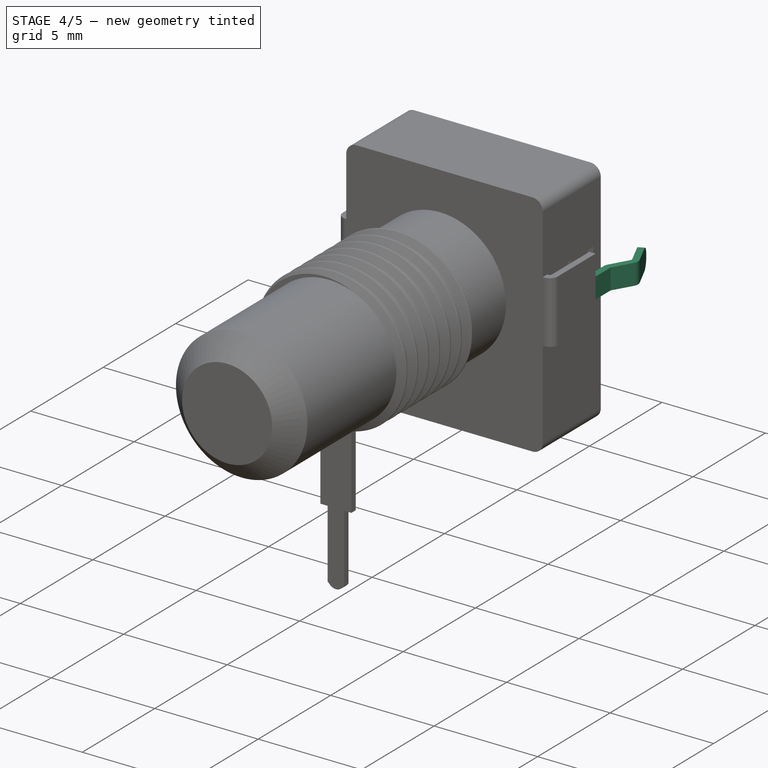
[diagram: stage 4 of 5 — iso view after this stage's code; geometry added in this stage tinted green]
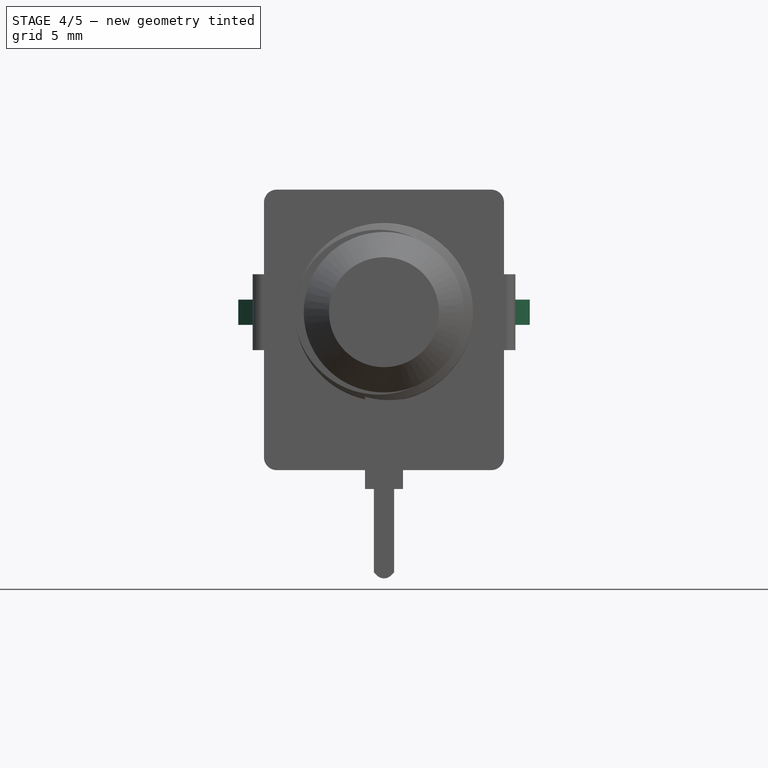
[diagram: stage 4 of 5 — front view after this stage's code; geometry added in this stage tinted green]
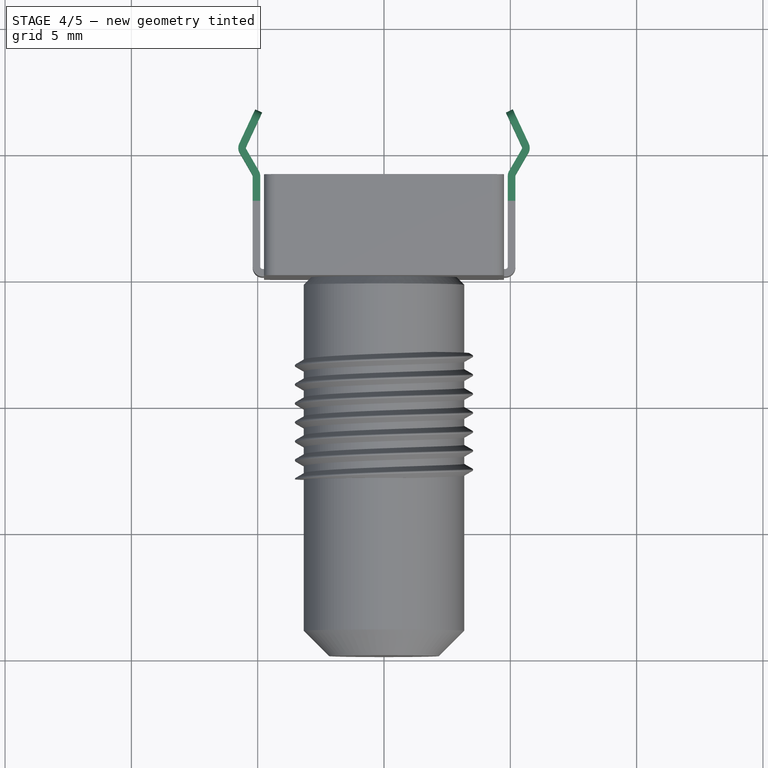
[diagram: stage 4 of 5 — top view after this stage's code; geometry added in this stage tinted green]
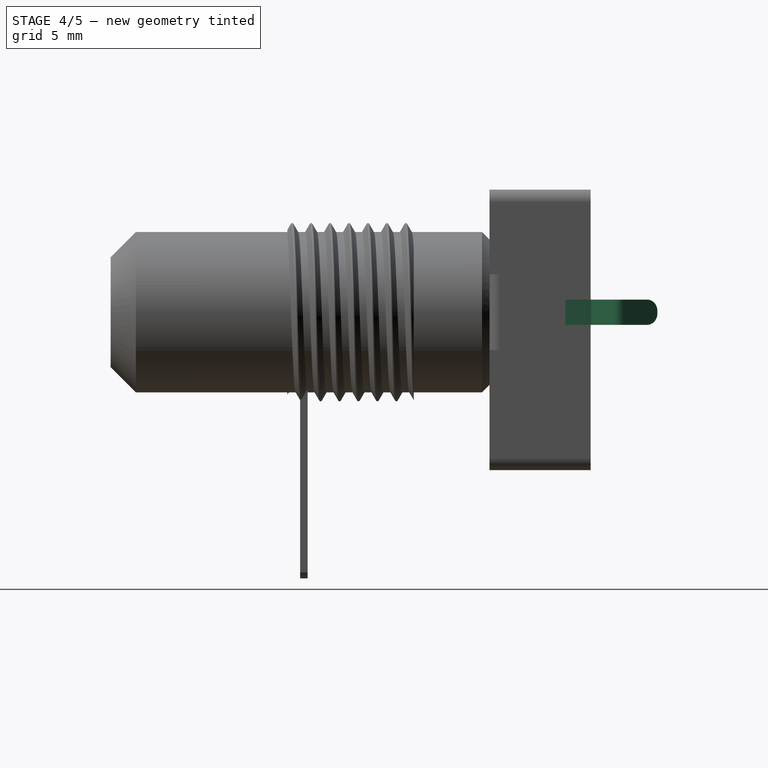
[diagram: stage 4 of 5 — right view after this stage's code; geometry added in this stage tinted green]
FEATURE [Sketcher::SketchObject] Sketch016
  FullyConstrained = false
  MapMode = 5
  Placement = pos=(0,3,-3e-15) rot=(0,0.707107,0.707107;3.14159rad)
  Support = -> [Bend003]
  sketch-geometry (8):
    g0: LineSegment StartX=4.9 StartY=0.5 StartZ=0 EndX=5.2 EndY=0.5 EndZ=0
    g1: LineSegment StartX=5.2 StartY=0.5 StartZ=0 EndX=5.2 EndY=-0.5 EndZ=0
    g2: LineSegment StartX=5.2 StartY=-0.5 StartZ=0 EndX=4.9 EndY=-0.5 EndZ=0
    g3: LineSegment StartX=4.9 StartY=-0.5 StartZ=0 EndX=4.9 EndY=0.5 EndZ=0
    g4: LineSegment StartX=-5.2 StartY=0.5 StartZ=0 EndX=-4.9 EndY=0.5 EndZ=0
    g5: LineSegment StartX=-4.9 StartY=0.5 StartZ=0 EndX=-4.9 EndY=-0.5 EndZ=0
    g6: LineSegment StartX=-4.9 StartY=-0.5 StartZ=0 EndX=-5.2 EndY=-0.5 EndZ=0
    g7: LineSegment StartX=-5.2 StartY=-0.5 StartZ=0 EndX=-5.2 EndY=0.5 EndZ=0
  constraints (23):
    c: Coincident(g0,g1)
    c: Coincident(g1,g2)
    c: Coincident(g2,g3)
    c: Coincident(g3,g0)
    c: Horizontal(g0)
    c: Horizontal(g2)
    c: Vertical(g1)
    c: Vertical(g3)
    c: Coincident(g4,g5)
    c: Coincident(g5,g6)
    c: Coincident(g6,g7)
    c: Coincident(g7,g4)
    c: Horizontal(g4)
    c: Horizontal(g6)
    c: Vertical(g5)
    c: Vertical(g7)
    c: Symmetric(g4,g6,g-1)
    c: Symmetric(g0,g1,g-1)
    c: DistanceX(g4,g4) = 0.3
    c: DistanceX(g0,g0) = 0.3
    c: DistanceX(g4,g0) = 10.4
    c: Symmetric(g4,g0,g-2)
    c: DistanceY(g7,g7) = 1
FEATURE [PartDesign::Pad] Pad009
  AllowMultiFace = false
  BaseFeature = -> Bend003
  Direction = (1,1,1)
  Length = 1
  Length2 = 100
  Profile = -> Sketch016
  Type = 0
FEATURE [PartDesign::FeaturePython] Bend004  # WARN: FeaturePython — macro-defined, semantics opaque (R4)
  BaseFeature = -> Pad009
  angle = 30
  baseObject = -> Pad009 [Face86]
  extend1 = 0
  extend2 = 0
  gap1 = 0
  gap2 = 0
  invert = false
  kfactor = 0.45
  length = 1
  miterangle1 = 0
  miterangle2 = 0
  radius = 0.1
  reliefType = 0
  reliefd = 1
  reliefw = 0.5
  unfold = false
FEATURE [PartDesign::FeaturePython] Bend005  # WARN: FeaturePython — macro-defined, semantics opaque (R4)
  BaseFeature = -> Bend004
  angle = 55
  baseObject = -> Bend004 [Face1]
  extend1 = 0
  extend2 = 0
  gap1 = 0
  gap2 = 0
  invert = true
  kfactor = 0.45
  length = 1.5
  miterangle1 = 0
  miterangle2 = 0
  radius = 0.1
  reliefType = 0
  reliefd = 1
  reliefw = 0.5
  unfold = false
FEATURE [PartDesign::FeaturePython] Bend006  # WARN: FeaturePython — macro-defined, semantics opaque (R4)
  BaseFeature = -> Bend005
  angle = 30
  baseObject = -> Bend005 [Face102]
  extend1 = 0
  extend2 = 0
  gap1 = 0
  gap2 = 0
  invert = true
  kfactor = 0.45
  length = 1
  miterangle1 = 0
  miterangle2 = 0
  radius = 0.1
  reliefType = 0
  reliefd = 1
  reliefw = 0.5
  unfold = false
FEATURE [PartDesign::FeaturePython] Bend007  # WARN: FeaturePython — macro-defined, semantics opaque (R4)
  BaseFeature = -> Bend006
  angle = 55
  baseObject = -> Bend006 [Face1]
  extend1 = 0
  extend2 = 0
  gap1 = 0
  gap2 = 0
  invert = false
  kfactor = 0.45
  length = 1.5
  miterangle1 = 0
  miterangle2 = 0
  radius = 0.1
  reliefType = 0
  reliefd = 1
  reliefw = 0.5
  unfold = false
FEATURE [PartDesign::Fillet] Fillet008
  Base = -> Bend007 [Edge275,Edge276,Edge2,Edge1]
  BaseFeature = -> Bend007
  Radius = 0.45
  SupportTransform = false
  UseAllEdges = false
FEATURE [Sketcher::SketchObject] Sketch017
  FullyConstrained = false
  MapMode = 5
  Placement = pos=(0,0.3,-1e-16) rot=(0,0.707107,0.707107;3.14159rad)
  Support = -> [Fillet008]
  sketch-geometry (2):
    g0: Circle CenterX=-3.8 CenterY=3.65 CenterZ=0 NormalX=0 NormalY=0 NormalZ=1 AngleXU=0 Radius=0.8
    g1: Circle CenterX=3.8 CenterY=-3.65 CenterZ=0 NormalX=0 NormalY=0 NormalZ=1 AngleXU=0 Radius=0.8
  constraints (6):
    c: Radius(g0) = 0.8
    c: DistanceX(g-1,g0) = -3.8
    c: DistanceY(g-1,g0) = 3.65
    c: DistanceX(g1) = 3.8
    c: DistanceY(g1) = -3.65
    c: Radius(g1) = 0.8
FEATURE [PartDesign::Pad] Pad010
  AllowMultiFace = false
  BaseFeature = -> Fillet008
  Direction = (1,1,1)
  Length = 0.4
  Length2 = 100
  Profile = -> Sketch017
  Type = 0
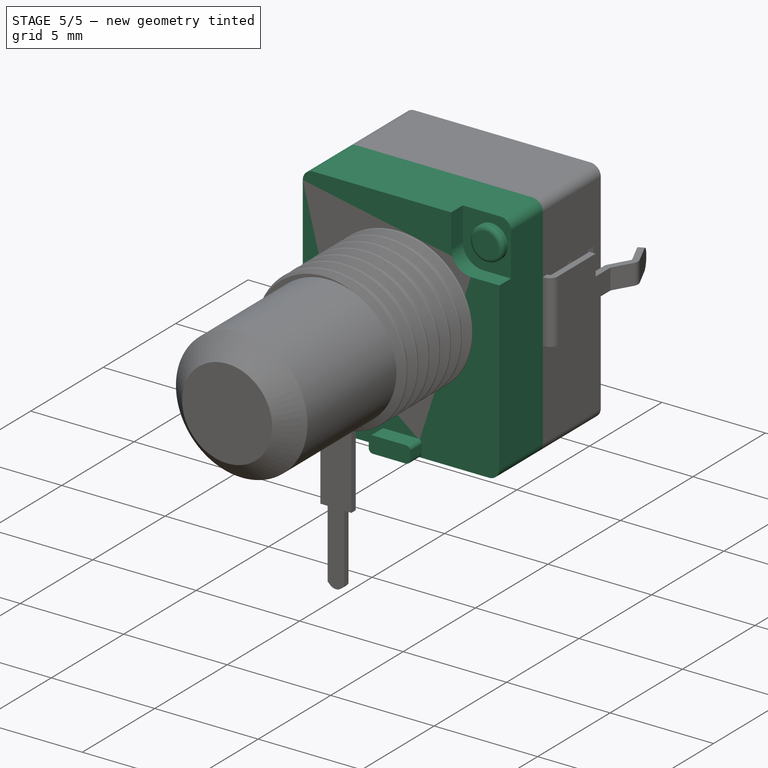
[diagram: stage 5 of 5 — iso view after this stage's code; geometry added in this stage tinted green]
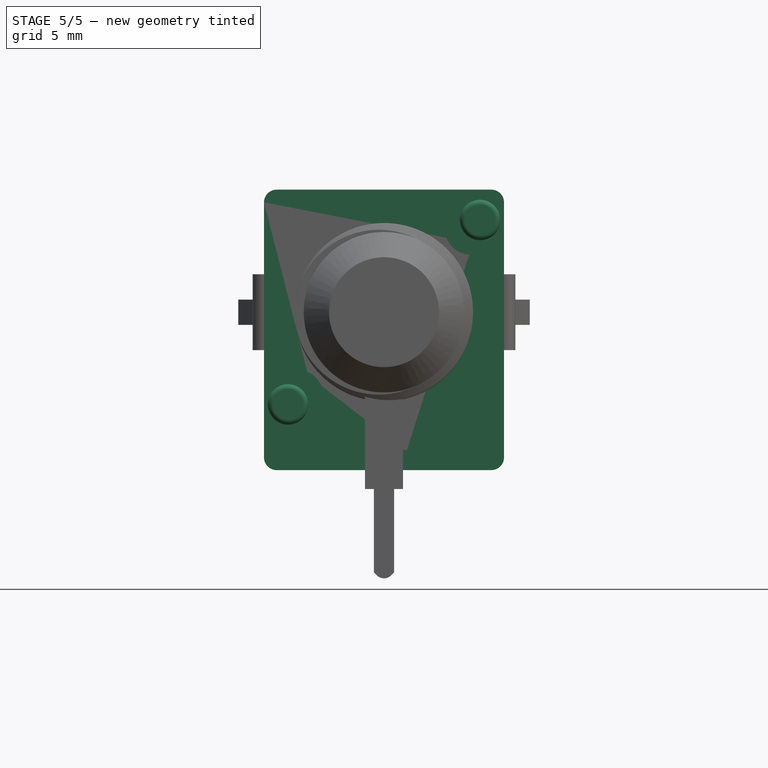
[diagram: stage 5 of 5 — front view after this stage's code; geometry added in this stage tinted green]
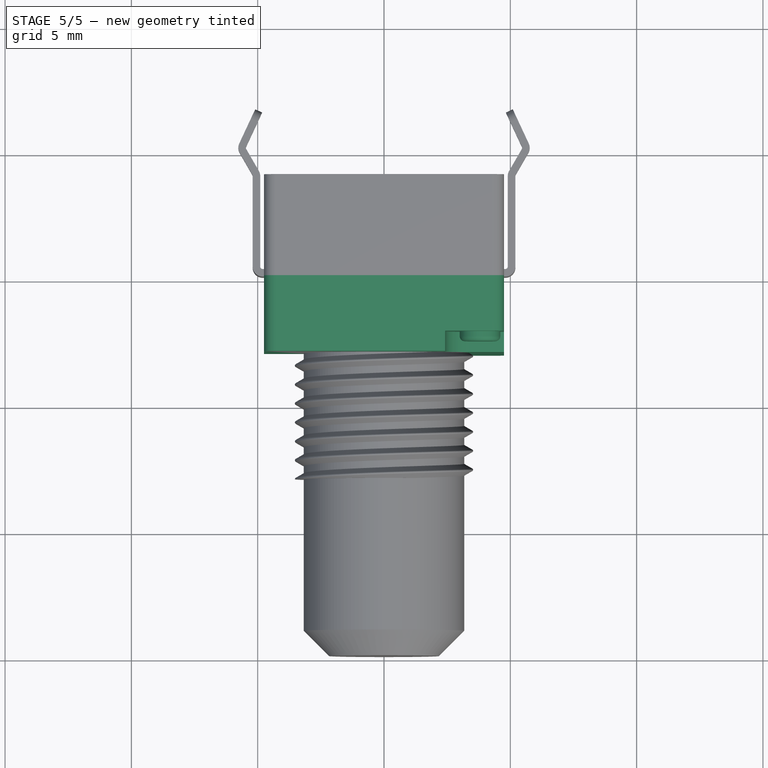
[diagram: stage 5 of 5 — top view after this stage's code; geometry added in this stage tinted green]
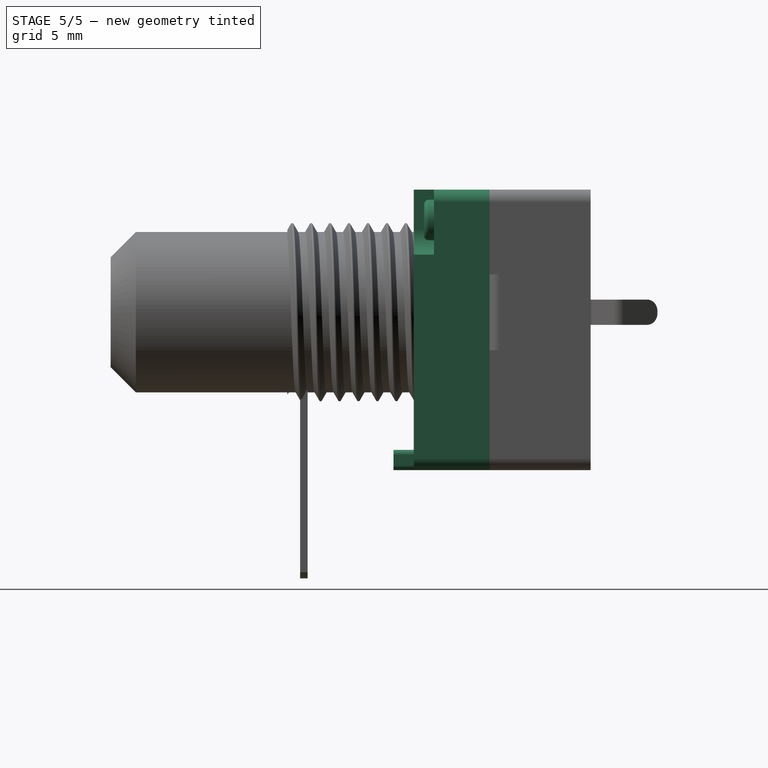
[diagram: stage 5 of 5 — right view after this stage's code; geometry added in this stage tinted green]
FEATURE [Sketcher::SketchObject] Sketch
  FullyConstrained = true
  MapMode = 5
  Placement = pos=(0,0,0) rot=(1,0,0;1.5708rad)
  Support = -> [XZ_Plane]
  sketch-geometry (4):
    g0: LineSegment StartX=-4.75 StartY=4.85 StartZ=0 EndX=4.75 EndY=4.85 EndZ=0
    g1: LineSegment StartX=4.75 StartY=4.85 StartZ=0 EndX=4.75 EndY=-6.25 EndZ=0
    g2: LineSegment StartX=4.75 StartY=-6.25 StartZ=0 EndX=-4.75 EndY=-6.25 EndZ=0
    g3: LineSegment StartX=-4.75 StartY=-6.25 StartZ=0 EndX=-4.75 EndY=4.85 EndZ=0
  constraints (11):
    c: Coincident(g0,g1)
    c: Coincident(g1,g2)
    c: Coincident(g2,g3)
    c: Coincident(g3,g0)
    c: Horizontal(g2)
    c: Vertical(g1)
    c: Vertical(g3)
    c: DistanceY(g-1,g0) = 4.85
    c: Symmetric(g0,g0,g-2)
    c: DistanceX(g0,g0) = 9.5
    c: DistanceY(g2,g-1) = 6.25
FEATURE [PartDesign::Pad] Pad  label="BasePad"
  AllowMultiFace = false
  Direction = (0,-1,-1.035e-13)
  Length = 3
  Length2 = 100
  Placement = pos=(0,0,0) rot=(1,0,0;1.5708rad)
  Profile = -> Sketch
  Type = 0
FEATURE [Sketcher::SketchObject] Sketch001
  FullyConstrained = true
  MapMode = 5
  Placement = pos=(0,-3,-3.104e-13) rot=(1,0,0;1.5708rad)
  Support = -> [Pad]
  sketch-geometry (10):
    g0: LineSegment StartX=-3.42 StartY=-2.28 StartZ=0 EndX=-4.75 EndY=-2.28 EndZ=0
    g1: LineSegment StartX=-4.75 StartY=-2.28 StartZ=0 EndX=-4.75 EndY=-6.25 EndZ=0
    g2: LineSegment StartX=-4.75 StartY=-6.25 StartZ=0 EndX=-2.42 EndY=-6.25 EndZ=0
    g3: LineSegment StartX=-2.42 StartY=-6.25 StartZ=0 EndX=-2.42 EndY=-3.28 EndZ=0
    g4: ArcOfCircle CenterX=-3.42 CenterY=-3.28 CenterZ=0 NormalX=0 NormalY=0 NormalZ=1 AngleXU=0 Radius=1 StartAngle=0 EndAngle=1.5708
    g5: LineSegment StartX=4.75 StartY=2.28 StartZ=0 EndX=4.75 EndY=4.85 EndZ=0
    g6: LineSegment StartX=4.75 StartY=4.85 StartZ=0 EndX=2.42 EndY=4.85 EndZ=0
    g7: LineSegment StartX=2.42 StartY=4.85 StartZ=0 EndX=2.42 EndY=3.28 EndZ=0
    g8: LineSegment StartX=4.75 StartY=2.28 StartZ=0 EndX=3.42 EndY=2.28 EndZ=0
    g9: ArcOfCircle CenterX=3.42 CenterY=3.28 CenterZ=0 NormalX=0 NormalY=0 NormalZ=1 AngleXU=0 Radius=1 StartAngle=3.14159 EndAngle=4.71239
  constraints (28):
    c: Horizontal(g0)
    c: Coincident(g0,g1)
    c: Vertical(g1)
    c: Coincident(g1,g2)
    c: Horizontal(g2)
    c: Coincident(g2,g3)
    c: Vertical(g3)
    c: Tangent(g4,g0) = -1.5708
    c: Tangent(g4,g3) = -1.5708
    c: DistanceX(g2,g2) = 2.33
    c: DistanceX(g0,g0) = 1.33
    c: DistanceY(g1,g1) = 3.97
    c: DistanceX(g1,g-1) = 4.75
    c: DistanceY(g1,g-1) = 6.25
    c: Vertical(g5)
    c: Coincident(g5,g6)
    c: Horizontal(g6)
    c: Coincident(g6,g7)
    c: Vertical(g7)
    c: Coincident(g5,g8)
    c: Horizontal(g8)
    c: Tangent(g9,g8) = 1.5708
    c: Tangent(g9,g7) = -1.5708
    c: DistanceY(g7,g7) = 1.57
    c: DistanceX(g6,g6) = 2.33
    c: DistanceY(g5,g5) = 2.57
    c: DistanceX(g-1,g5) = 4.75
    c: DistanceY(g-1,g5) = 4.85
FEATURE [PartDesign::Pocket] Pocket  label="TwoCornerNotchesPocket"
  AllowMultiFace = false
  BaseFeature = -> Pad
  Direction = (0,1,1.035e-13)
  Length = 0.8
  Length2 = 100
  Placement = pos=(0,0,0) rot=(1,0,0;1.5708rad)
  Profile = -> Sketch001
  Type = 0
FEATURE [Sketcher::SketchObject] Sketch002
  FullyConstrained = true
  MapMode = 5
  Placement = pos=(0,-2.2,-2.276e-13) rot=(1,0,0;1.5708rad)
  Support = -> [Pocket]
  sketch-geometry (1):
    g0: Circle CenterX=-3.8 CenterY=-3.65 CenterZ=0 NormalX=0 NormalY=0 NormalZ=1 AngleXU=0 Radius=0.8
  constraints (3):
    c: Radius(g0) = 0.8
    c: DistanceX(g0) = -3.8
    c: DistanceY(g0) = -3.65
FEATURE [PartDesign::Pad] Pad001  label="Rivet1Pad"
  AllowMultiFace = false
  BaseFeature = -> Pocket
  Direction = (0,-1,-1.035e-13)
  Length = 0.4
  Length2 = 100
  Placement = pos=(0,0,0) rot=(1,0,0;1.5708rad)
  Profile = -> Sketch002
  Type = 0
FEATURE [Sketcher::SketchObject] Sketch003
  FullyConstrained = true
  MapMode = 5
  Placement = pos=(0,-2.2,-2.277e-13) rot=(1,0,0;1.5708rad)
  Support = -> [Pad001]
  sketch-geometry (1):
    g0: Circle CenterX=3.8 CenterY=3.65 CenterZ=0 NormalX=0 NormalY=0 NormalZ=1 AngleXU=0 Radius=0.8
  constraints (3):
    c: Radius(g0) = 0.8
    c: DistanceX(g0) = 3.8
    c: DistanceY(g0) = 3.65
FEATURE [PartDesign::Pad] Pad002  label="Rivet2Pad"
  AllowMultiFace = false
  BaseFeature = -> Pad001
  Direction = (0,-1,-1.035e-13)
  Length = 0.4
  Length2 = 100
  Placement = pos=(0,0,0) rot=(1,0,0;1.5708rad)
  Profile = -> Sketch003
  Type = 0
FEATURE [PartDesign::Fillet] Fillet  label="RivetsFillet"
  Base = -> Pad002 [Edge42,Edge34]
  BaseFeature = -> Pad002
  Placement = pos=(0,0,0) rot=(1,0,0;1.5708rad)
  Radius = 0.2
  SupportTransform = false
  UseAllEdges = false
FEATURE [PartDesign::Fillet] Fillet001  label="CornersFillet"
  Base = -> Fillet [Edge15,Edge21,Edge27,Edge12]
  BaseFeature = -> Fillet
  Placement = pos=(0,0,0) rot=(1,0,0;1.5708rad)
  Radius = 0.5
  SupportTransform = false
  UseAllEdges = false
FEATURE [Sketcher::SketchObject] Sketch005
  FullyConstrained = true
  MapMode = 5
  Placement = pos=(0,-3,-3.104e-13) rot=(1,0,0;1.5708rad)
  Support = -> [Fillet001]
  sketch-geometry (8):
    g0: LineSegment StartX=-0.8 StartY=-5.45 StartZ=0 EndX=0.8 EndY=-5.45 EndZ=0
    g1: LineSegment StartX=1 StartY=-5.65 StartZ=0 EndX=1 EndY=-6.05 EndZ=0
    g2: LineSegment StartX=0.8 StartY=-6.25 StartZ=0 EndX=-0.8 EndY=-6.25 EndZ=0
    g3: LineSegment StartX=-1 StartY=-6.05 StartZ=0 EndX=-1 EndY=-5.65 EndZ=0
    g4: ArcOfCircle CenterX=-0.8 CenterY=-5.65 CenterZ=0 NormalX=0 NormalY=0 NormalZ=1 AngleXU=0 Radius=0.2 StartAngle=1.5708 EndAngle=3.14159
    g5: ArcOfCircle CenterX=0.8 CenterY=-5.65 CenterZ=0 NormalX=0 NormalY=0 NormalZ=1 AngleXU=0 Radius=0.2 StartAngle=0 EndAngle=1.5708
    g6: ArcOfCircle CenterX=0.8 CenterY=-6.05 CenterZ=0 NormalX=0 NormalY=0 NormalZ=1 AngleXU=0 Radius=0.2 StartAngle=4.71239 EndAngle=6.28319
    g7: ArcOfCircle CenterX=-0.8 CenterY=-6.05 CenterZ=0 NormalX=0 NormalY=0 NormalZ=1 AngleXU=0 Radius=0.2 StartAngle=3.14159 EndAngle=4.71239
  constraints (19):
    c: Vertical(g3)
    c: Vertical(g1)
    c: Horizontal(g2)
    c: Tangent(g7,g2) = 1.5708
    c: Tangent(g7,g3) = 1.5708
    c: Tangent(g3,g4) = 1.5708
    c: Tangent(g4,g0) = 1.5708
    c: Tangent(g5,g0) = 1.5708
    c: Tangent(g5,g1) = 1.5708
    c: DistanceX(g3,g1) = 2
    c: DistanceY(g2,g0) = 0.8
    c: DistanceY(g1,g1) = 0.4
    c: Horizontal(g1,g3)
    c: Horizontal(g3,g1)
    c: Symmetric(g0,g0,g-2)
    c: Vertical(g2,g0)
    c: Tangent(g6,g2) = 1.5708
    c: Tangent(g6,g1) = 1.5708
    c: DistanceY(g0,g-1) = 5.45
FEATURE [PartDesign::Pad] Pad003  label="AntiRotationTabPad"
  AllowMultiFace = false
  BaseFeature = -> Fillet001
  Direction = (0,-1,-1.035e-13)
  Length = 0.8
  Length2 = 0
  Placement = pos=(0,0,0) rot=(1,0,0;1.5708rad)
  Profile = -> Sketch005
  Type = 0
FEATURE [PartDesign::Fillet] Fillet009
  Base = -> Pad010 [Edge214,Edge207]
  BaseFeature = -> Pad010
  Radius = 0.2
  SupportTransform = false
  UseAllEdges = false
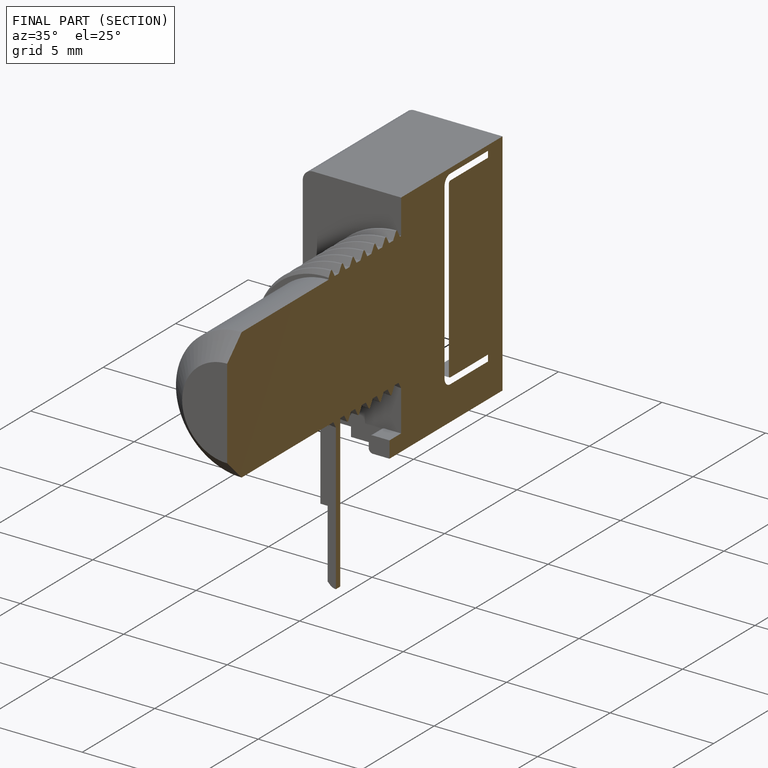
[diagram: finished part — half-section view (interior)]
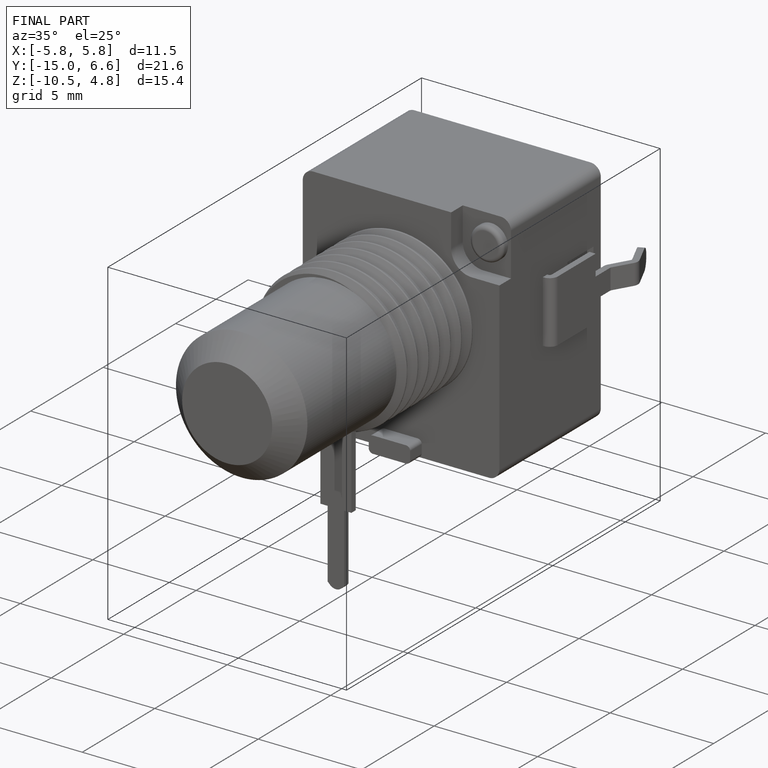
[diagram: finished part — iso view with bounding-box wireframe]
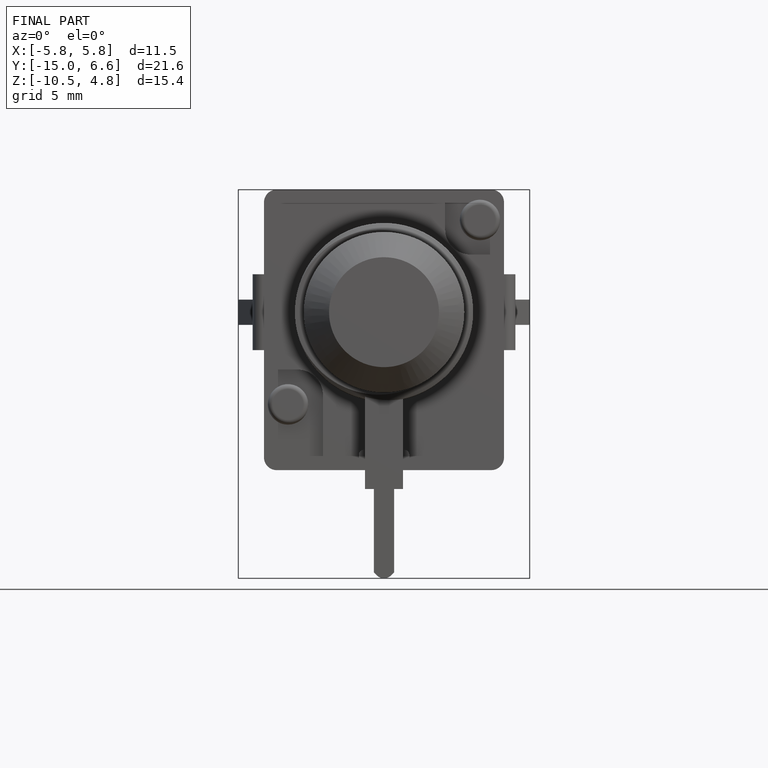
[diagram: finished part — front view with bounding-box wireframe]
